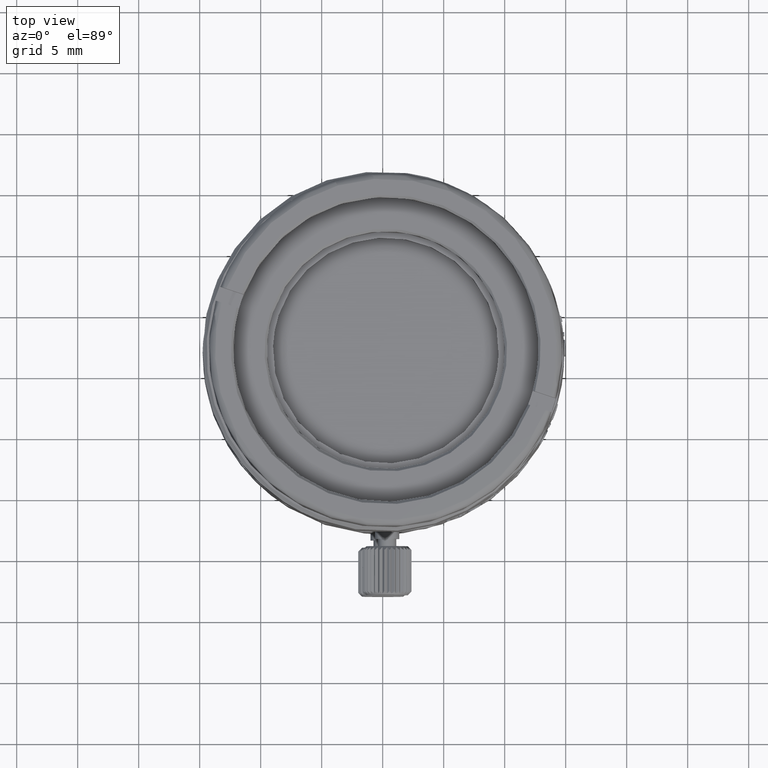
[diagram: clean part render]
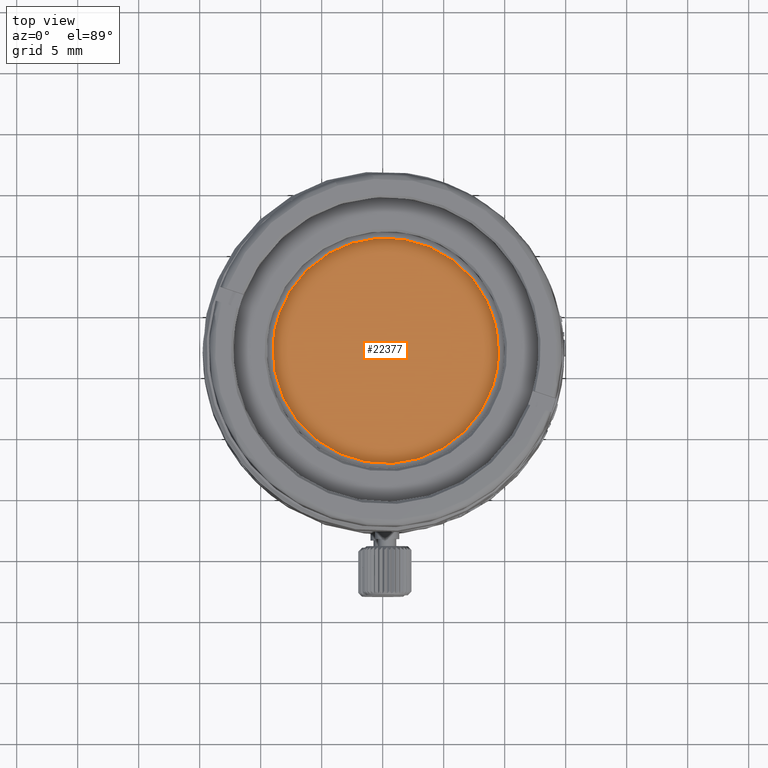
[diagram: same view with one face highlighted and labeled with its STEP entity id]
A machine part, top view. The second image highlights one B-rep face of the part: STEP entity #22377.
In plain terms, the highlighted face is a freeform B-spline surface patch.
Its self-contained STEP definition (entity closure, byte-faithful):
#48 = CARTESIAN_POINT ( 'NONE',  ( 9.616454640999998915, -22.65075096300000013, 16.61338461000000066 ) ) ;
#4592 = EDGE_CURVE ( 'NONE', #15341, #24274, #18340, .T. ) ;
#5570 = CARTESIAN_POINT ( 'NONE',  ( -2.662998471199697459, -22.06728657659858683, 16.61338461000000066 ) ) ;
#7034 = FACE_OUTER_BOUND ( 'NONE', #21426, .T. ) ;
#8380 = CARTESIAN_POINT ( 'NONE',  ( 7.323400003997127428, -21.34996539281942063, 16.61338461000000422 ) ) ;
#11376 = CARTESIAN_POINT ( 'NONE',  ( 9.032990253771449929, -16.20820407490559845, 16.61338461000000066 ) ) ;
#12230 = CARTESIAN_POINT ( 'NONE',  ( 9.616454640999998915, -3.928750963000000151, 16.61338461000000066 ) ) ;
#13887 = CARTESIAN_POINT ( 'NONE',  ( -8.522080970798629806, -10.37129784816855960, 16.61338461000000066 ) ) ;
#15013 = ORIENTED_EDGE ( 'NONE', *, *, #4592, .F. ) ;
#15341 = VERTEX_POINT ( 'NONE', #37994 ) ;
#17000 = CARTESIAN_POINT ( 'NONE',  ( 9.032990253771449929, -16.20820407490559845, 16.61338461000000066 ) ) ;
#18340 =( BOUNDED_CURVE ( )  B_SPLINE_CURVE ( 3, ( #13887, #26064, #20088, #26256 ),
 .UNSPECIFIED., .F., .F. ) 
 B_SPLINE_CURVE_WITH_KNOTS ( ( 4, 4 ),
 ( -9.103785541865500264, -5.962192888344179487 ),
 .UNSPECIFIED. ) 
 CURVE ( )  GEOMETRIC_REPRESENTATION_ITEM ( )  RATIONAL_B_SPLINE_CURVE ( ( 1.000000000000000000, 0.3333333335299311084, 0.3333333335299311084, 1.000000000000000000 ) ) 
 REPRESENTATION_ITEM ( '' )  );
#20088 = CARTESIAN_POINT ( 'NONE',  ( 14.86989647255339086, 1.346867144641082037, 16.61338461000000066 ) ) ;
#20197 = CARTESIAN_POINT ( 'NONE',  ( 2.478762847869687480, -23.77687682885322218, 16.61338461000000422 ) ) ;
#21426 = EDGE_LOOP ( 'NONE', ( #34194, #15013 ) ) ;
#22377 = ADVANCED_FACE ( 'NONE', ( #7034 ), #24735, .F. ) ;
#22970 =( BOUNDED_CURVE ( )  B_SPLINE_CURVE ( 3, ( #11376, #8380, #20197, #5570, #32366, #26174, #26755 ),
 .UNSPECIFIED., .F., .F. ) 
 B_SPLINE_CURVE_WITH_KNOTS ( ( 4, 3, 4 ),
 ( -5.962192888344179487, -4.391396561515047203, -2.820600234685915364 ),
 .UNSPECIFIED. ) 
 CURVE ( )  GEOMETRIC_REPRESENTATION_ITEM ( )  RATIONAL_B_SPLINE_CURVE ( ( 1.000000000000000000, 0.8047378540760217192, 0.8047378540760217192, 1.000000000000000000, 0.8047378540760217192, 0.8047378540760217192, 1.000000000000000000 ) ) 
 REPRESENTATION_ITEM ( '' )  );
#24274 = VERTEX_POINT ( 'NONE', #17000 ) ;
#24735 = B_SPLINE_SURFACE_WITH_KNOTS ( 'NONE', 1, 1, ( 
 ( #48, #12230 ),
 ( #29340, #35726 ) ),
 .UNSPECIFIED., .F., .F., .F.,
 ( 2, 2 ),
 ( 2, 2 ),
 ( 0.0000000000000000000, 1.000000000000000000 ),
 ( 0.0000000000000000000, 1.000000000000000000 ),
 .UNSPECIFIED. ) ;
#26064 = CARTESIAN_POINT ( 'NONE',  ( -2.685174743765803562, 7.183773367174236313, 16.61338461000000066 ) ) ;
#26174 = CARTESIAN_POINT ( 'NONE',  ( -10.23167122530923301, -15.51305916771874038, 16.61338461000000422 ) ) ;
#26256 = CARTESIAN_POINT ( 'NONE',  ( 9.032990253771449929, -16.20820407490559845, 16.61338461000000066 ) ) ;
#26755 = CARTESIAN_POINT ( 'NONE',  ( -8.522080970798629806, -10.37129784816855960, 16.61338461000000066 ) ) ;
#29340 = CARTESIAN_POINT ( 'NONE',  ( -9.105545359000000616, -22.65075096300000013, 16.61338461000000066 ) ) ;
#29495 = EDGE_CURVE ( 'NONE', #24274, #15341, #22970, .T. ) ;
#32366 = CARTESIAN_POINT ( 'NONE',  ( -7.804759790269081954, -20.35769632434395149, 16.61338461000000422 ) ) ;
#34194 = ORIENTED_EDGE ( 'NONE', *, *, #29495, .F. ) ;
#35726 = CARTESIAN_POINT ( 'NONE',  ( -9.105545359000000616, -3.928750963000000151, 16.61338461000000066 ) ) ;
#37994 = CARTESIAN_POINT ( 'NONE',  ( -8.522080970798629806, -10.37129784816855960, 16.61338461000000066 ) ) ;